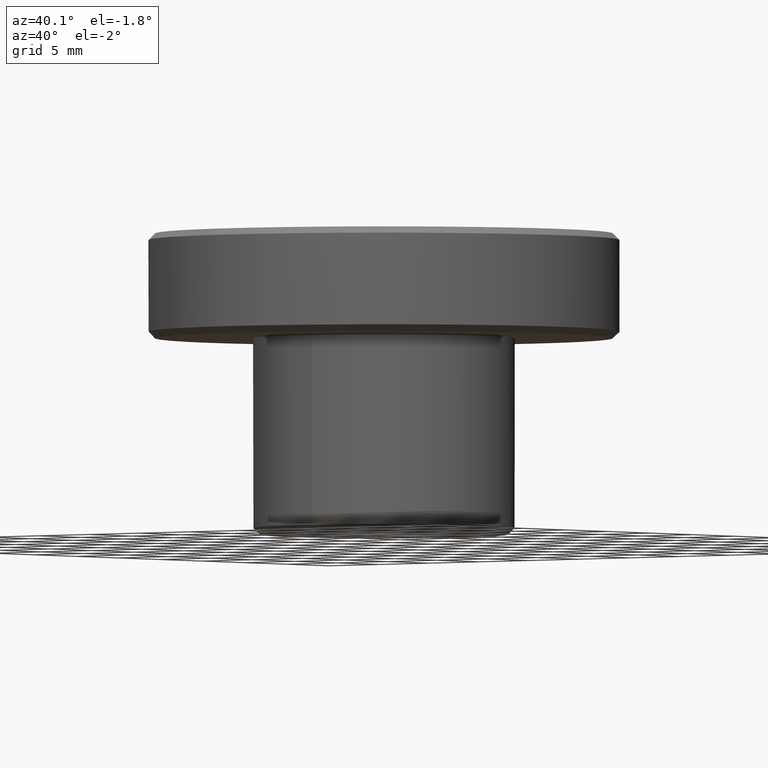
[diagram: clean part render]
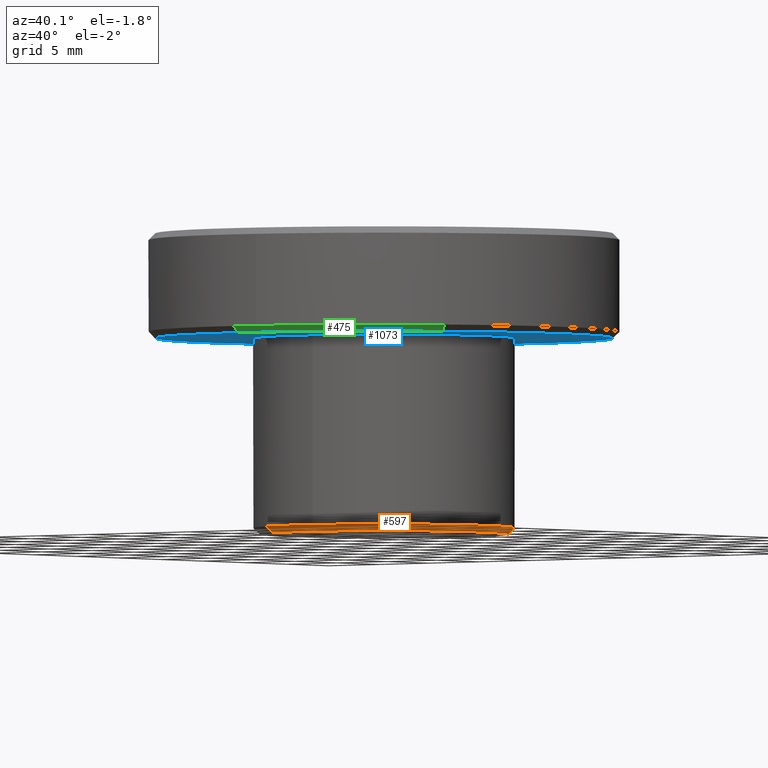
[diagram: same view with three faces highlighted in distinct colors, each labeled with its STEP entity id]
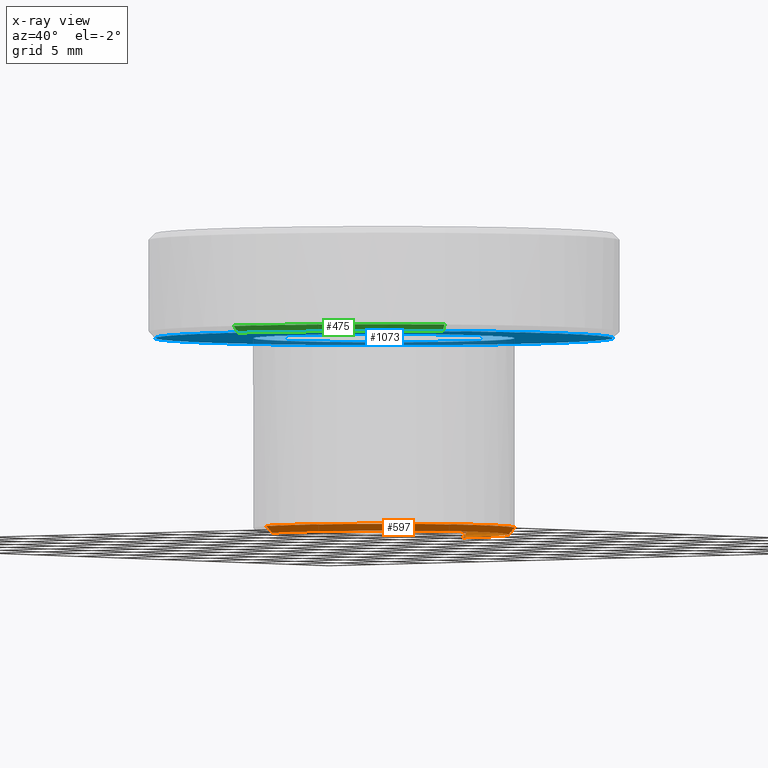
[diagram: x-ray of the same camera — body ghosted, the three highlighted faces saturated]
A machine part, auxiliary view with three faces highlighted in distinct colors.
The next image is the same camera in x-ray (body ghosted, the three faces saturated) — at least one of them is partly hidden behind the body in this view.
Their STEP definitions:

[orange] entity #597 — the highlighted face is a freeform B-spline surface patch.
#476=CARTESIAN_POINT('',(-3.834993910984958,-8.677872893325199,-0.012499999999999));
#477=CARTESIAN_POINT('',(-1.963370728928781,-9.504995345460285,-0.012499999999999));
#478=CARTESIAN_POINT('',(0.082793005540822,-9.487138745071324,-0.012499999999999));
#479=CARTESIAN_POINT('',(9.569931750612147,-9.404345739530502,-0.012499999999999));
#480=CARTESIAN_POINT('',(9.487138745071324,0.082793005540822,-0.012499999999999));
#481=CARTESIAN_POINT('',(9.404345739530502,9.569931750612147,-0.012499999999999));
#482=CARTESIAN_POINT('',(-0.082793005540822,9.487138745071324,-0.012499999999999));
#483=CARTESIAN_POINT('',(-4.047333330101089,-9.158357225791594,0.512812499999944));
#484=CARTESIAN_POINT('',(-2.072080419157019,-10.031276543606490,0.512812499999944));
#485=CARTESIAN_POINT('',(0.087377163719812,-10.012431242780970,0.512812499999944));
#486=CARTESIAN_POINT('',(10.099808406500783,-9.925054079061161,0.512812499999944));
#487=CARTESIAN_POINT('',(10.012431242780970,0.087377163719812,0.512812499999944));
#488=CARTESIAN_POINT('',(9.925054079061161,10.099808406500783,0.512812499999944));
#489=CARTESIAN_POINT('',(-0.087377163719812,10.012431242780970,0.512812499999944));
#497=(BOUNDED_SURFACE()B_SPLINE_SURFACE(2,1,((#476,#483),(#477,#484),(#478,#485),(#479,#486),(#480,#487),(#481,#488),(#482,#489)),.UNSPECIFIED.,.F.,.F.,.U.)B_SPLINE_SURFACE_WITH_KNOTS((3,2,2,3),(2,2),(0.0,4.645135863198720,21.234906803194139,37.824677743189568),(0.0,1.0),.UNSPECIFIED.)GEOMETRIC_REPRESENTATION_ITEM()RATIONAL_B_SPLINE_SURFACE(((0.881905454174416,0.881905454174416),(0.917989898732233,0.917989898732233),(1.0,1.0),(0.707106781186548,0.707106781186548),(1.0,1.0),(0.707106781186548,0.707106781186548),(1.0,1.0)))REPRESENTATION_ITEM('')SURFACE());
#498=CARTESIAN_POINT('',(-4.042154319909006,-9.146638095721006,0.500000000002636));
#499=VERTEX_POINT('',#498);
#500=CARTESIAN_POINT('',(1.241268919189210,-9.922663527003707,0.499999999999942));
#501=VERTEX_POINT('',#500);
#502=CARTESIAN_POINT('',(-4.042154319909007,-9.146638095721006,0.500000000002636));
#503=CARTESIAN_POINT('',(-2.111156172552140,-9.999999999999998,0.499999999999945));
#504=CARTESIAN_POINT('',(0.0,-10.0,0.499999999999945));
#505=CARTESIAN_POINT('',(0.623043659552424,-10.000000000000002,0.499999999999945));
#506=CARTESIAN_POINT('',(1.241268919189210,-9.922663527003707,0.499999999999942));
#514=(BOUNDED_CURVE()B_SPLINE_CURVE(2,(#502,#503,#504,#505,#506),.UNSPECIFIED.,.F.,.U.)B_SPLINE_CURVE_WITH_KNOTS((3,2,3),(0.181361578458937,0.250000000000000,0.271473740287339),.UNSPECIFIED.)CURVE()GEOMETRIC_REPRESENTATION_ITEM()RATIONAL_B_SPLINE_CURVE((0.883326595750833,0.919585087122254,1.0,0.974841948349109,0.954005796436511))REPRESENTATION_ITEM(''));
#515=EDGE_CURVE('',#499,#501,#514,.T.);
#516=ORIENTED_EDGE('',*,*,#515,.F.);
#517=CARTESIAN_POINT('',(-3.840046603890534,-8.689306190942896,5.149898E-013));
#518=VERTEX_POINT('',#517);
#519=CARTESIAN_POINT('',(-3.840046603890534,-8.689306190942896,5.149898E-013));
#520=CARTESIAN_POINT('',(-4.042154319909006,-9.146638095721006,0.500000000002636));
#521=QUASI_UNIFORM_CURVE('',1,(#519,#520),.UNSPECIFIED.,.F.,.U.);
#522=EDGE_CURVE('',#518,#499,#521,.T.);
#523=ORIENTED_EDGE('',*,*,#522,.F.);
#524=CARTESIAN_POINT('',(9.500000000000000,0.0,0.0));
#525=VERTEX_POINT('',#524);
#526=CARTESIAN_POINT('',(9.500000000000000,0.0,0.0));
#527=CARTESIAN_POINT('',(9.500000000000000,-9.500000000000000,0.0));
#528=CARTESIAN_POINT('',(0.0,-9.500000000000000,0.0));
#529=CARTESIAN_POINT('',(-2.005598363899188,-9.500000000000000,0.0));
#530=CARTESIAN_POINT('',(-3.840046603890533,-8.689306190942896,5.149898E-013));
#538=(BOUNDED_CURVE()B_SPLINE_CURVE(2,(#526,#527,#528,#529,#530),.UNSPECIFIED.,.F.,.U.)B_SPLINE_CURVE_WITH_KNOTS((3,2,3),(0.500000000000000,0.750000000000000,0.818638421540265),.UNSPECIFIED.)CURVE()GEOMETRIC_REPRESENTATION_ITEM()RATIONAL_B_SPLINE_CURVE((1.0,0.707106781186548,1.0,0.919585087123189,0.883326595751676))REPRESENTATION_ITEM(''));
#539=EDGE_CURVE('',#525,#518,#538,.T.);
#540=ORIENTED_EDGE('',*,*,#539,.F.);
#541=CARTESIAN_POINT('',(-0.082902087259469,9.499638269112790,3.381165E-012));
#542=VERTEX_POINT('',#541);
#543=CARTESIAN_POINT('',(-0.082902087259469,9.499638269112790,3.381165E-012));
#544=CARTESIAN_POINT('',(-0.041451832821553,9.500000000000002,0.0));
#545=CARTESIAN_POINT('',(0.0,9.500000000000000,0.0));
#546=CARTESIAN_POINT('',(9.500000000000000,9.500000000000000,0.0));
#547=CARTESIAN_POINT('',(9.500000000000000,0.0,0.0));
#555=(BOUNDED_CURVE()B_SPLINE_CURVE(2,(#543,#544,#545,#546,#547),.UNSPECIFIED.,.F.,.U.)B_SPLINE_CURVE_WITH_KNOTS((3,2,3),(0.248460105664090,0.250000000000000,0.500000000000000),.UNSPECIFIED.)CURVE()GEOMETRIC_REPRESENTATION_ITEM()RATIONAL_B_SPLINE_CURVE((0.996414028098270,0.998195901565291,1.0,0.707106781186548,1.0))REPRESENTATION_ITEM(''));
#556=EDGE_CURVE('',#542,#525,#555,.T.);
#557=ORIENTED_EDGE('',*,*,#556,.F.);
#558=CARTESIAN_POINT('',(-0.087261004263184,9.999619268604203,0.499999999998073));
#559=VERTEX_POINT('',#558);
#560=CARTESIAN_POINT('',(-0.082902087259469,9.499638269112790,3.381165E-012));
#561=CARTESIAN_POINT('',(-0.087261004263184,9.999619268604203,0.499999999998073));
#562=QUASI_UNIFORM_CURVE('',1,(#560,#561),.UNSPECIFIED.,.F.,.U.);
#563=EDGE_CURVE('',#542,#559,#562,.T.);
#564=ORIENTED_EDGE('',*,*,#563,.T.);
#565=CARTESIAN_POINT('',(10.0,0.0,0.499999999999945));
#566=VERTEX_POINT('',#565);
#567=CARTESIAN_POINT('',(10.0,0.0,0.499999999999945));
#568=CARTESIAN_POINT('',(10.000000000000002,10.000000000000002,0.499999999999945));
#569=CARTESIAN_POINT('',(0.0,10.0,0.499999999999945));
#570=CARTESIAN_POINT('',(-0.043631332722512,10.000000000000002,0.499999999999945));
#571=CARTESIAN_POINT('',(-0.087261004263184,9.999619268604203,0.499999999998073));
#579=(BOUNDED_CURVE()B_SPLINE_CURVE(2,(#567,#568,#569,#570,#571),.UNSPECIFIED.,.F.,.U.)B_SPLINE_CURVE_WITH_KNOTS((3,2,3),(0.500000000000000,0.750000000000000,0.751539817697262),.UNSPECIFIED.)CURVE()GEOMETRIC_REPRESENTATION_ITEM()RATIONAL_B_SPLINE_CURVE((1.0,0.707106781186548,1.0,0.998195991353052,0.996414205461629))REPRESENTATION_ITEM(''));
#580=EDGE_CURVE('',#566,#559,#579,.T.);
#581=ORIENTED_EDGE('',*,*,#580,.F.);
#582=CARTESIAN_POINT('',(1.241268919189210,-9.922663527003707,0.499999999999942));
#583=CARTESIAN_POINT('',(10.0,-8.826995954229798,0.499999999999945));
#584=CARTESIAN_POINT('',(10.0,0.0,0.499999999999945));
#592=(BOUNDED_CURVE()B_SPLINE_CURVE(2,(#582,#583,#584),.UNSPECIFIED.,.F.,.U.)B_SPLINE_CURVE_WITH_KNOTS((3,3),(0.271473740287339,0.500000000000000),.UNSPECIFIED.)CURVE()GEOMETRIC_REPRESENTATION_ITEM()RATIONAL_B_SPLINE_CURVE((0.954005796436511,0.732264832837439,1.0))REPRESENTATION_ITEM(''));
#593=EDGE_CURVE('',#501,#566,#592,.T.);
#594=ORIENTED_EDGE('',*,*,#593,.F.);
#595=EDGE_LOOP('',(#516,#523,#540,#557,#564,#581,#594));
#596=FACE_OUTER_BOUND('',#595,.T.);
#597=ADVANCED_FACE('',(#596),#497,.T.);

[blue] entity #1073 — the highlighted face is a freeform B-spline surface patch.
#286=CARTESIAN_POINT('',(17.500000000000000,0.0,15.0));
#287=VERTEX_POINT('',#286);
#288=CARTESIAN_POINT('',(14.330156972439550,-10.044730018534210,15.0));
#289=VERTEX_POINT('',#288);
#290=CARTESIAN_POINT('',(17.500000000000000,0.0,15.0));
#291=CARTESIAN_POINT('',(17.499999999999996,-5.522523042426500,14.999999999999996));
#292=CARTESIAN_POINT('',(14.330156972439546,-10.044730018534207,15.000000000000002));
#300=(BOUNDED_CURVE()B_SPLINE_CURVE(2,(#290,#291,#292),.UNSPECIFIED.,.F.,.U.)B_SPLINE_CURVE_WITH_KNOTS((3,3),(0.0,0.098673726202874),.UNSPECIFIED.)CURVE()GEOMETRIC_REPRESENTATION_ITEM()RATIONAL_B_SPLINE_CURVE((1.0,0.884396538880492,0.860049271925871))REPRESENTATION_ITEM(''));
#301=EDGE_CURVE('',#287,#289,#300,.T.);
#303=CARTESIAN_POINT('',(-17.500000000000000,0.0,15.0));
#304=VERTEX_POINT('',#303);
#305=CARTESIAN_POINT('',(-17.500000000000000,0.0,15.0));
#306=CARTESIAN_POINT('',(-17.499999999999996,17.499999999999996,14.999999999999995));
#307=CARTESIAN_POINT('',(0.0,17.500000000000000,15.0));
#308=CARTESIAN_POINT('',(17.499999999999996,17.499999999999996,14.999999999999995));
#309=CARTESIAN_POINT('',(17.500000000000000,0.0,15.0));
#317=(BOUNDED_CURVE()B_SPLINE_CURVE(2,(#305,#306,#307,#308,#309),.UNSPECIFIED.,.F.,.U.)B_SPLINE_CURVE_WITH_KNOTS((3,2,3),(0.500000000000000,0.750000000000000,1.0),.UNSPECIFIED.)CURVE()GEOMETRIC_REPRESENTATION_ITEM()RATIONAL_B_SPLINE_CURVE((1.0,0.707106781186548,1.0,0.707106781186548,1.0))REPRESENTATION_ITEM(''));
#318=EDGE_CURVE('',#304,#287,#317,.T.);
#320=CARTESIAN_POINT('',(0.152714371254917,-17.499333653627250,15.000000000004540));
#321=VERTEX_POINT('',#320);
#322=CARTESIAN_POINT('',(0.152714371254917,-17.499333653627247,15.000000000004546));
#323=CARTESIAN_POINT('',(0.076358639395613,-17.499999999999996,15.000000000000002));
#324=CARTESIAN_POINT('',(0.0,-17.500000000000000,15.0));
#325=CARTESIAN_POINT('',(-17.499999999999996,-17.499999999999996,14.999999999999995));
#326=CARTESIAN_POINT('',(-17.500000000000000,0.0,15.0));
#334=(BOUNDED_CURVE()B_SPLINE_CURVE(2,(#322,#323,#324,#325,#326),.UNSPECIFIED.,.F.,.U.)B_SPLINE_CURVE_WITH_KNOTS((3,2,3),(0.248460105664342,0.250000000000000,0.500000000000000),.UNSPECIFIED.)CURVE()GEOMETRIC_REPRESENTATION_ITEM()RATIONAL_B_SPLINE_CURVE((0.996414028098853,0.998195901565586,1.0,0.707106781186548,1.0))REPRESENTATION_ITEM(''));
#335=EDGE_CURVE('',#321,#304,#334,.T.);
#430=CARTESIAN_POINT('',(14.330156972439550,-10.044730018534207,15.000000000000005));
#431=CARTESIAN_POINT('',(9.159947341179224,-17.420728722299302,15.000000000000002));
#432=CARTESIAN_POINT('',(0.152714371254917,-17.499333653627243,15.000000000004542));
#440=(BOUNDED_CURVE()B_SPLINE_CURVE(2,(#430,#431,#432),.UNSPECIFIED.,.F.,.U.)B_SPLINE_CURVE_WITH_KNOTS((3,3),(0.098673726202873,0.248460105664342),.UNSPECIFIED.)CURVE()GEOMETRIC_REPRESENTATION_ITEM()RATIONAL_B_SPLINE_CURVE((0.860049271925871,0.823090203820786,0.996414028098853))REPRESENTATION_ITEM(''));
#441=EDGE_CURVE('',#289,#321,#440,.T.);
#879=CARTESIAN_POINT('',(-0.087256334427209,9.999619309354777,15.0));
#880=VERTEX_POINT('',#879);
#886=CARTESIAN_POINT('',(10.0,0.0,15.0));
#887=VERTEX_POINT('',#886);
#888=CARTESIAN_POINT('',(-0.087256334427209,9.999619309354777,15.000000000000005));
#889=CARTESIAN_POINT('',(-0.043628997671177,10.0,14.999999999999996));
#890=CARTESIAN_POINT('',(0.0,10.0,15.0));
#891=CARTESIAN_POINT('',(10.000000000000002,10.000000000000002,14.999999999999995));
#892=CARTESIAN_POINT('',(10.0,0.0,15.0));
#900=(BOUNDED_CURVE()B_SPLINE_CURVE(2,(#888,#889,#890,#891,#892),.UNSPECIFIED.,.F.,.U.)B_SPLINE_CURVE_WITH_KNOTS((3,2,3),(0.248460264561681,0.250000000000000,0.500000000000000),.UNSPECIFIED.)CURVE()GEOMETRIC_REPRESENTATION_ITEM()RATIONAL_B_SPLINE_CURVE((0.996414395832051,0.998196087725398,1.0,0.707106781186548,1.0))REPRESENTATION_ITEM(''));
#901=EDGE_CURVE('',#880,#887,#900,.T.);
#903=CARTESIAN_POINT('',(1.241279027887399,-9.922662262463934,15.0));
#904=VERTEX_POINT('',#903);
#905=CARTESIAN_POINT('',(10.0,0.0,15.0));
#906=CARTESIAN_POINT('',(10.0,-8.826986891658692,15.000000000000007));
#907=CARTESIAN_POINT('',(1.241279027887399,-9.922662262463934,15.000000000000002));
#915=(BOUNDED_CURVE()B_SPLINE_CURVE(2,(#905,#906,#907),.UNSPECIFIED.,.F.,.U.)B_SPLINE_CURVE_WITH_KNOTS((3,3),(0.500000000000000,0.728526087904849),.UNSPECIFIED.)CURVE()GEOMETRIC_REPRESENTATION_ITEM()RATIONAL_B_SPLINE_CURVE((1.0,0.732265034122812,0.954005463023639))REPRESENTATION_ITEM(''));
#916=EDGE_CURVE('',#887,#904,#915,.T.);
#951=CARTESIAN_POINT('',(-10.0,0.0,15.0));
#952=VERTEX_POINT('',#951);
#953=CARTESIAN_POINT('',(1.241279027887399,-9.922662262463934,15.000000000000002));
#954=CARTESIAN_POINT('',(0.623048773067885,-10.0,15.000000000000002));
#955=CARTESIAN_POINT('',(0.0,-10.0,15.0));
#956=CARTESIAN_POINT('',(-10.000000000000002,-10.000000000000002,14.999999999999995));
#957=CARTESIAN_POINT('',(-10.0,0.0,15.0));
#965=(BOUNDED_CURVE()B_SPLINE_CURVE(2,(#953,#954,#955,#956,#957),.UNSPECIFIED.,.F.,.U.)B_SPLINE_CURVE_WITH_KNOTS((3,2,3),(0.728526087904849,0.750000000000000,1.0),.UNSPECIFIED.)CURVE()GEOMETRIC_REPRESENTATION_ITEM()RATIONAL_B_SPLINE_CURVE((0.954005463023639,0.974841747063736,1.0,0.707106781186548,1.0))REPRESENTATION_ITEM(''));
#966=EDGE_CURVE('',#904,#952,#965,.T.);
#968=CARTESIAN_POINT('',(-10.0,0.0,15.0));
#969=CARTESIAN_POINT('',(-10.0,9.913121048813546,15.0));
#970=CARTESIAN_POINT('',(-0.087256334427209,9.999619309354777,15.000000000000005));
#978=(BOUNDED_CURVE()B_SPLINE_CURVE(2,(#968,#969,#970),.UNSPECIFIED.,.F.,.U.)B_SPLINE_CURVE_WITH_KNOTS((3,3),(0.0,0.248460264561681),.UNSPECIFIED.)CURVE()GEOMETRIC_REPRESENTATION_ITEM()RATIONAL_B_SPLINE_CURVE((1.0,0.708910693461149,0.996414395832051))REPRESENTATION_ITEM(''));
#979=EDGE_CURVE('',#952,#880,#978,.T.);
#1056=CARTESIAN_POINT('',(-19.248249932163208,-19.247551095767310,15.0));
#1057=CARTESIAN_POINT('',(19.248250870936360,-19.247551095767310,15.0));
#1058=CARTESIAN_POINT('',(-19.248249932163208,19.248217624707500,15.0));
#1059=CARTESIAN_POINT('',(19.248250870936360,19.248217624707500,15.0));
#1060=B_SPLINE_SURFACE_WITH_KNOTS('',1,1,((#1056,#1058),(#1057,#1059)),.UNSPECIFIED.,.F.,.F.,.U.,(2,2),(2,2),(0.0,38.496500803099579),(0.0,38.495768720474807),.UNSPECIFIED.);
#1061=ORIENTED_EDGE('',*,*,#301,.T.);
#1062=ORIENTED_EDGE('',*,*,#441,.T.);
#1063=ORIENTED_EDGE('',*,*,#335,.T.);
#1064=ORIENTED_EDGE('',*,*,#318,.T.);
#1065=EDGE_LOOP('',(#1061,#1062,#1063,#1064));
#1066=FACE_OUTER_BOUND('',#1065,.T.);
#1067=ORIENTED_EDGE('',*,*,#979,.F.);
#1068=ORIENTED_EDGE('',*,*,#966,.F.);
#1069=ORIENTED_EDGE('',*,*,#916,.F.);
#1070=ORIENTED_EDGE('',*,*,#901,.F.);
#1071=EDGE_LOOP('',(#1067,#1068,#1069,#1070));
#1072=FACE_BOUND('',#1071,.T.);
#1073=ADVANCED_FACE('',(#1066,#1072),#1060,.F.);

[green] entity #475 — the highlighted face is a freeform B-spline surface patch.
#288=CARTESIAN_POINT('',(14.330156972439550,-10.044730018534210,15.0));
#289=VERTEX_POINT('',#288);
#320=CARTESIAN_POINT('',(0.152714371254917,-17.499333653627250,15.000000000004540));
#321=VERTEX_POINT('',#320);
#337=CARTESIAN_POINT('',(0.157077638971336,-17.999314615155171,15.500000000000069));
#338=VERTEX_POINT('',#337);
#339=CARTESIAN_POINT('',(0.152714371254917,-17.499333653627250,15.000000000004540));
#340=CARTESIAN_POINT('',(0.157077638971336,-17.999314615155171,15.500000000000069));
#341=QUASI_UNIFORM_CURVE('',1,(#339,#340),.UNSPECIFIED.,.F.,.U.);
#342=EDGE_CURVE('',#321,#338,#341,.T.);
#393=CARTESIAN_POINT('',(14.739590028790010,-10.331722304785830,15.500000000000380));
#394=VERTEX_POINT('',#393);
#408=CARTESIAN_POINT('',(14.330156972439550,-10.044730018534210,15.0));
#409=CARTESIAN_POINT('',(14.739590028790010,-10.331722304785830,15.500000000000380));
#410=QUASI_UNIFORM_CURVE('',1,(#408,#409),.UNSPECIFIED.,.F.,.U.);
#411=EDGE_CURVE('',#289,#394,#410,.T.);
#416=CARTESIAN_POINT('',(0.152605289527813,-17.486834129584690,14.987500000000001));
#417=CARTESIAN_POINT('',(9.153404521625713,-17.408285344675011,14.987500000000002));
#418=CARTESIAN_POINT('',(14.319921146030703,-10.037555211378052,14.987499999999999));
#419=CARTESIAN_POINT('',(0.157189447706803,-18.012126627294400,15.512812500000001));
#420=CARTESIAN_POINT('',(9.428366512348630,-17.931218290786557,15.512812500000008));
#421=CARTESIAN_POINT('',(14.750081750864162,-10.339076482113015,15.512812500000001));
#429=(BOUNDED_SURFACE()B_SPLINE_SURFACE(2,1,((#416,#419),(#417,#420),(#418,#421)),.UNSPECIFIED.,.F.,.F.,.U.)B_SPLINE_SURFACE_WITH_KNOTS((3,3),(2,2),(0.0,17.784708021925880),(0.0,1.0),.UNSPECIFIED.)GEOMETRIC_REPRESENTATION_ITEM()RATIONAL_B_SPLINE_SURFACE(((1.0,1.0),(0.824264068711928,0.824264068711928),(0.859411254969543,0.859411254969543)))REPRESENTATION_ITEM('')SURFACE());
#430=CARTESIAN_POINT('',(14.330156972439550,-10.044730018534207,15.000000000000005));
#431=CARTESIAN_POINT('',(9.159947341179224,-17.420728722299302,15.000000000000002));
#432=CARTESIAN_POINT('',(0.152714371254917,-17.499333653627243,15.000000000004542));
#440=(BOUNDED_CURVE()B_SPLINE_CURVE(2,(#430,#431,#432),.UNSPECIFIED.,.F.,.U.)B_SPLINE_CURVE_WITH_KNOTS((3,3),(0.098673726202873,0.248460105664342),.UNSPECIFIED.)CURVE()GEOMETRIC_REPRESENTATION_ITEM()RATIONAL_B_SPLINE_CURVE((0.860049271925871,0.823090203820786,0.996414028098853))REPRESENTATION_ITEM(''));
#441=EDGE_CURVE('',#289,#321,#440,.T.);
#442=ORIENTED_EDGE('',*,*,#441,.F.);
#443=ORIENTED_EDGE('',*,*,#411,.T.);
#444=CARTESIAN_POINT('',(2.234292979299845,-17.860793232175531,15.500000000000000));
#445=VERTEX_POINT('',#444);
#446=CARTESIAN_POINT('',(2.234292979299845,-17.860793232175535,15.500000000000007));
#447=CARTESIAN_POINT('',(10.156768879505131,-16.869732418003473,15.500000000000002));
#448=CARTESIAN_POINT('',(14.739590028790010,-10.331722304785831,15.500000000000387));
#456=(BOUNDED_CURVE()B_SPLINE_CURVE(2,(#446,#447,#448),.UNSPECIFIED.,.F.,.U.)B_SPLINE_CURVE_WITH_KNOTS((3,3),(0.271473824557087,0.401326273796971),.UNSPECIFIED.)CURVE()GEOMETRIC_REPRESENTATION_ITEM()RATIONAL_B_SPLINE_CURVE((0.954005632901279,0.828008805147070,0.860049271925795))REPRESENTATION_ITEM(''));
#457=EDGE_CURVE('',#445,#394,#456,.T.);
#458=ORIENTED_EDGE('',*,*,#457,.F.);
#459=CARTESIAN_POINT('',(0.157077638971336,-17.999314615155168,15.500000000000068));
#460=CARTESIAN_POINT('',(1.199697270601845,-17.990215811473725,15.499999999999998));
#461=CARTESIAN_POINT('',(2.234292979299845,-17.860793232175535,15.500000000000005));
#469=(BOUNDED_CURVE()B_SPLINE_CURVE(2,(#459,#460,#461),.UNSPECIFIED.,.F.,.U.)B_SPLINE_CURVE_WITH_KNOTS((3,3),(0.251539894334999,0.271473824557087),.UNSPECIFIED.)CURVE()GEOMETRIC_REPRESENTATION_ITEM()RATIONAL_B_SPLINE_CURVE((0.996414028100378,0.973347678333298,0.954005632901279))REPRESENTATION_ITEM(''));
#470=EDGE_CURVE('',#338,#445,#469,.T.);
#471=ORIENTED_EDGE('',*,*,#470,.F.);
#472=ORIENTED_EDGE('',*,*,#342,.F.);
#473=EDGE_LOOP('',(#442,#443,#458,#471,#472));
#474=FACE_OUTER_BOUND('',#473,.T.);
#475=ADVANCED_FACE('',(#474),#429,.T.);